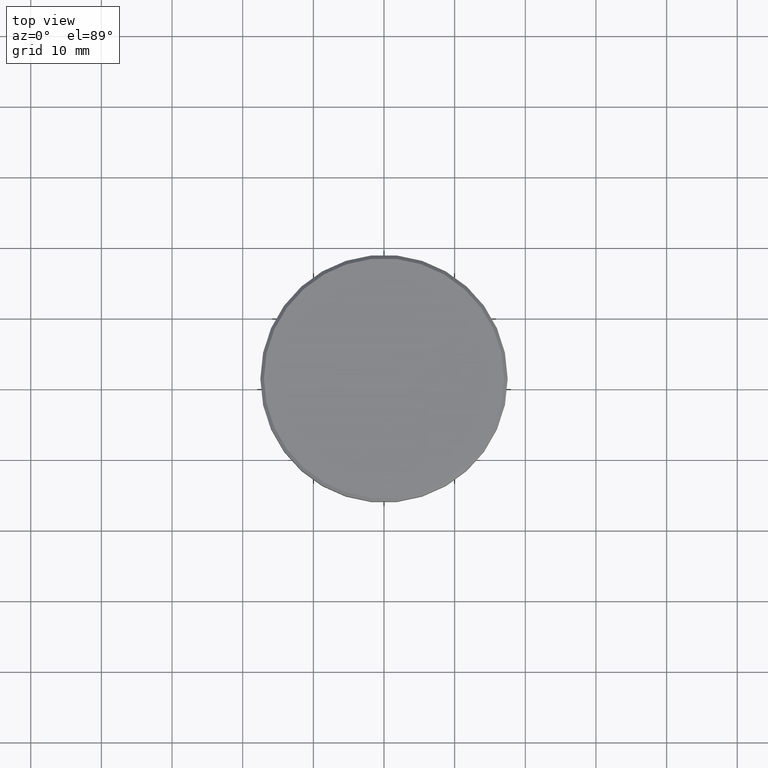
[diagram: clean part render]
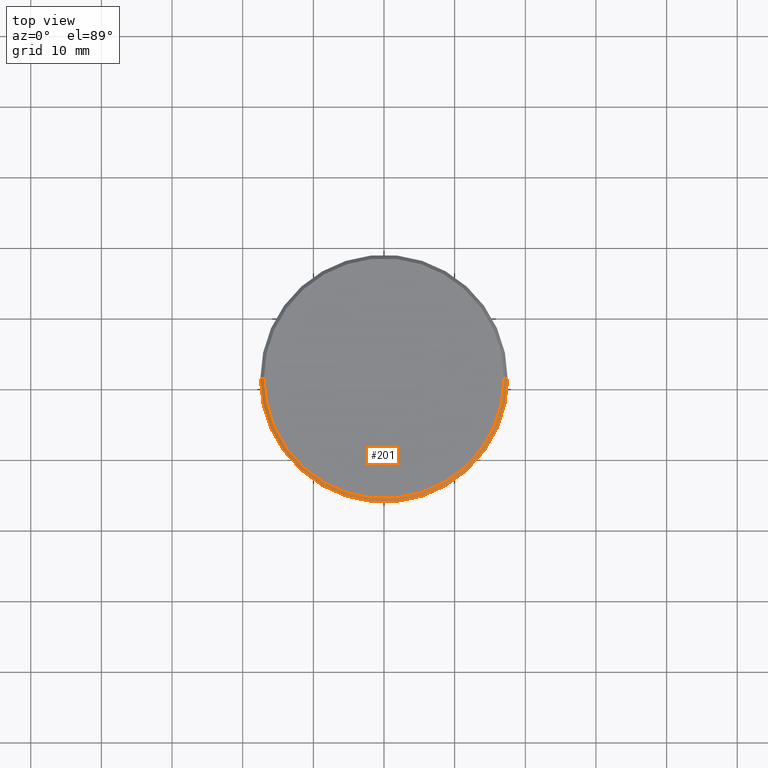
[diagram: same view with one face highlighted and labeled with its STEP entity id]
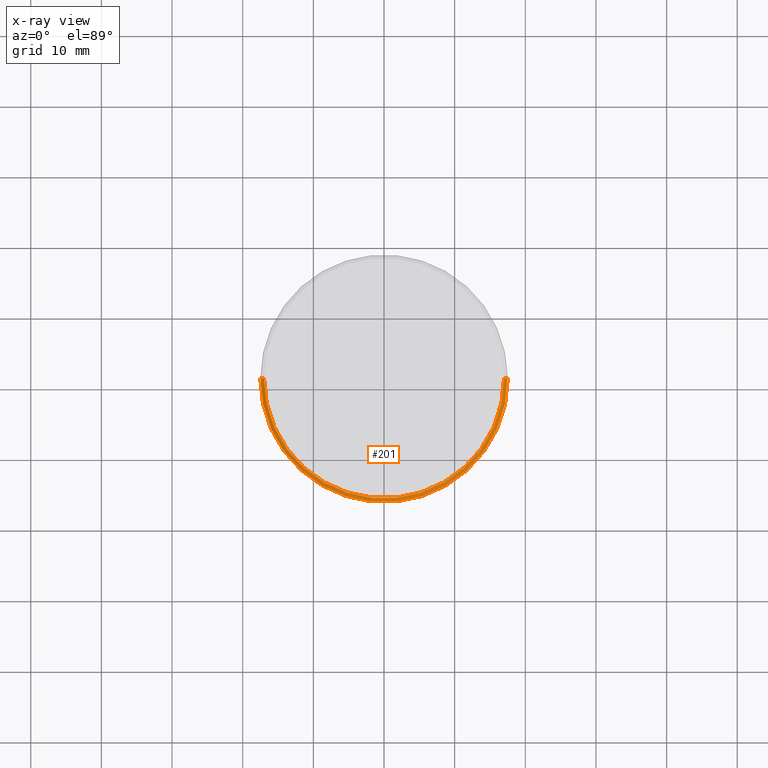
[diagram: x-ray of the same camera — body ghosted, the highlighted face saturated]
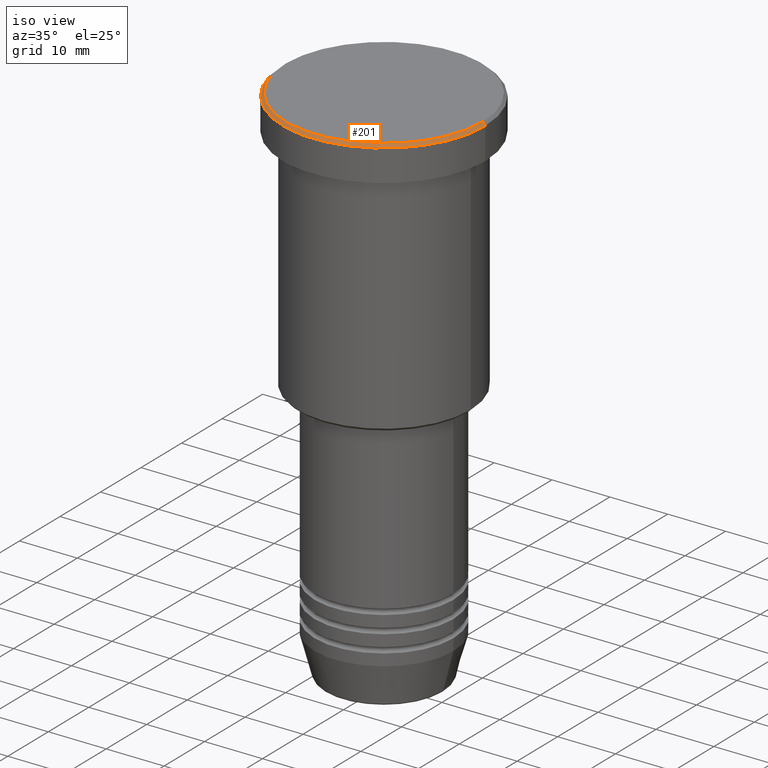
[diagram: same view with one face highlighted and labeled with its STEP entity id]
A machine part, top view. The second image highlights one B-rep face of the part: STEP entity #201.
The next image is the same camera in x-ray: the body ghosted, the highlighted face saturated — about 0% of this face is hidden behind the body in this view.
A second angle (iso view) of the same face is appended — the face is thin or edge-on in the first view.
In plain terms, the highlighted conical surface has half-angle 45 deg.
Its self-contained STEP definition (entity closure, byte-faithful):
#6 = DIRECTION ( 'NONE',  ( -0.7071067811865378028, 0.000000000000000000, -0.7071067811865573427 ) ) ;
#39 = CARTESIAN_POINT ( 'NONE',  ( 0.000000000000000000, 0.000000000000000000, 0.000000000000000000 ) ) ;
#53 = DIRECTION ( 'NONE',  ( -1.000000000000000000, 0.000000000000000000, 0.000000000000000000 ) ) ;
#65 = LINE ( 'NONE', #258, #633 ) ;
#130 = FACE_OUTER_BOUND ( 'NONE', #697, .T. ) ;
#156 = DIRECTION ( 'NONE',  ( 1.000000000000000000, 0.000000000000000000, 0.000000000000000000 ) ) ;
#201 = ADVANCED_FACE ( 'NONE', ( #130 ), #749, .T. ) ;
#251 = AXIS2_PLACEMENT_3D ( 'NONE', #820, #1009, #1181 ) ;
#258 = CARTESIAN_POINT ( 'NONE',  ( 17.00000000000000000, 2.081899558550500280E-15, 0.000000000000000000 ) ) ;
#260 = CARTESIAN_POINT ( 'NONE',  ( -17.00000000000000000, 0.000000000000000000, 0.000000000000000000 ) ) ;
#271 = EDGE_CURVE ( 'NONE', #490, #424, #65, .T. ) ;
#274 = CARTESIAN_POINT ( 'NONE',  ( 17.50000000000000000, 0.000000000000000000, -0.5000000000000142109 ) ) ;
#403 = CARTESIAN_POINT ( 'NONE',  ( -17.00000000000000000, 0.000000000000000000, 0.000000000000000000 ) ) ;
#414 = DIRECTION ( 'NONE',  ( 0.7071067811865378028, 8.659560562354814529E-17, -0.7071067811865573427 ) ) ;
#424 = VERTEX_POINT ( 'NONE', #274 ) ;
#448 = LINE ( 'NONE', #260, #520 ) ;
#490 = VERTEX_POINT ( 'NONE', #993 ) ;
#497 = AXIS2_PLACEMENT_3D ( 'NONE', #1077, #517, #156 ) ;
#516 = VERTEX_POINT ( 'NONE', #829 ) ;
#517 = DIRECTION ( 'NONE',  ( 0.000000000000000000, 0.000000000000000000, -1.000000000000000000 ) ) ;
#520 = VECTOR ( 'NONE', #6, 1000.000000000000000 ) ;
#531 = ORIENTED_EDGE ( 'NONE', *, *, #944, .F. ) ;
#633 = VECTOR ( 'NONE', #414, 1000.000000000000000 ) ;
#635 = CIRCLE ( 'NONE', #497, 17.50000000000000000 ) ;
#642 = VERTEX_POINT ( 'NONE', #403 ) ;
#697 = EDGE_LOOP ( 'NONE', ( #1164, #531, #930, #964 ) ) ;
#749 = CONICAL_SURFACE ( 'NONE', #933, 17.00000000000000000, 0.7853981633974346233 ) ;
#801 = EDGE_CURVE ( 'NONE', #424, #516, #635, .T. ) ;
#820 = CARTESIAN_POINT ( 'NONE',  ( 0.000000000000000000, 0.000000000000000000, 0.000000000000000000 ) ) ;
#829 = CARTESIAN_POINT ( 'NONE',  ( -17.50000000000000000, 2.143131898507868248E-15, -0.5000000000000142109 ) ) ;
#831 = EDGE_CURVE ( 'NONE', #642, #516, #448, .T. ) ;
#864 = DIRECTION ( 'NONE',  ( 0.000000000000000000, 0.000000000000000000, -1.000000000000000000 ) ) ;
#930 = ORIENTED_EDGE ( 'NONE', *, *, #831, .T. ) ;
#933 = AXIS2_PLACEMENT_3D ( 'NONE', #39, #864, #53 ) ;
#944 = EDGE_CURVE ( 'NONE', #642, #490, #1098, .T. ) ;
#964 = ORIENTED_EDGE ( 'NONE', *, *, #801, .F. ) ;
#993 = CARTESIAN_POINT ( 'NONE',  ( 17.00000000000000000, 2.112515728529184067E-15, 0.000000000000000000 ) ) ;
#1009 = DIRECTION ( 'NONE',  ( -0.000000000000000000, -0.000000000000000000, 1.000000000000000000 ) ) ;
#1077 = CARTESIAN_POINT ( 'NONE',  ( 0.000000000000000000, 0.000000000000000000, -0.5000000000000142109 ) ) ;
#1098 = CIRCLE ( 'NONE', #251, 17.00000000000000000 ) ;
#1164 = ORIENTED_EDGE ( 'NONE', *, *, #271, .F. ) ;
#1181 = DIRECTION ( 'NONE',  ( 1.000000000000000000, 0.000000000000000000, 0.000000000000000000 ) ) ;